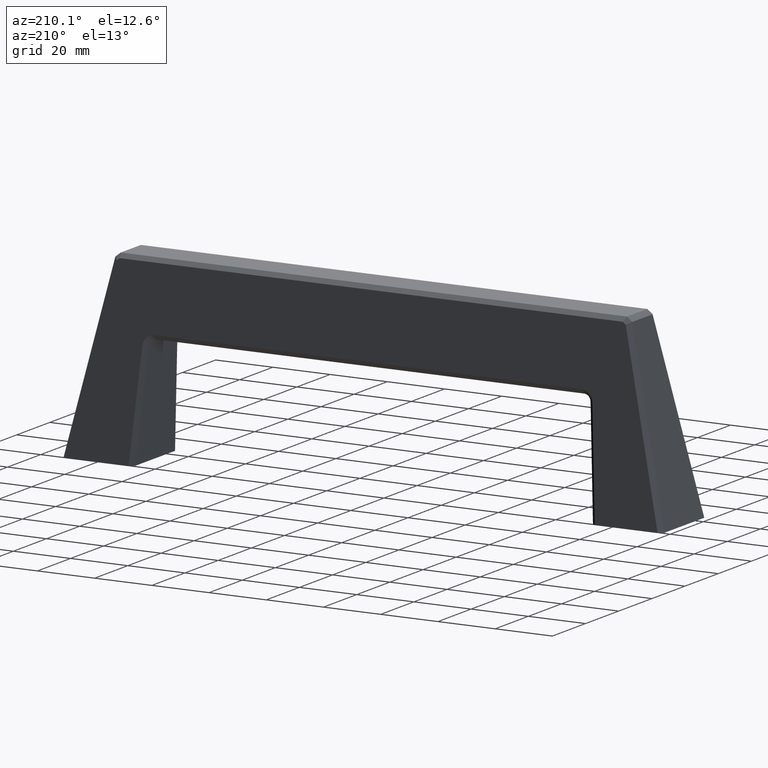
[diagram: clean part render]
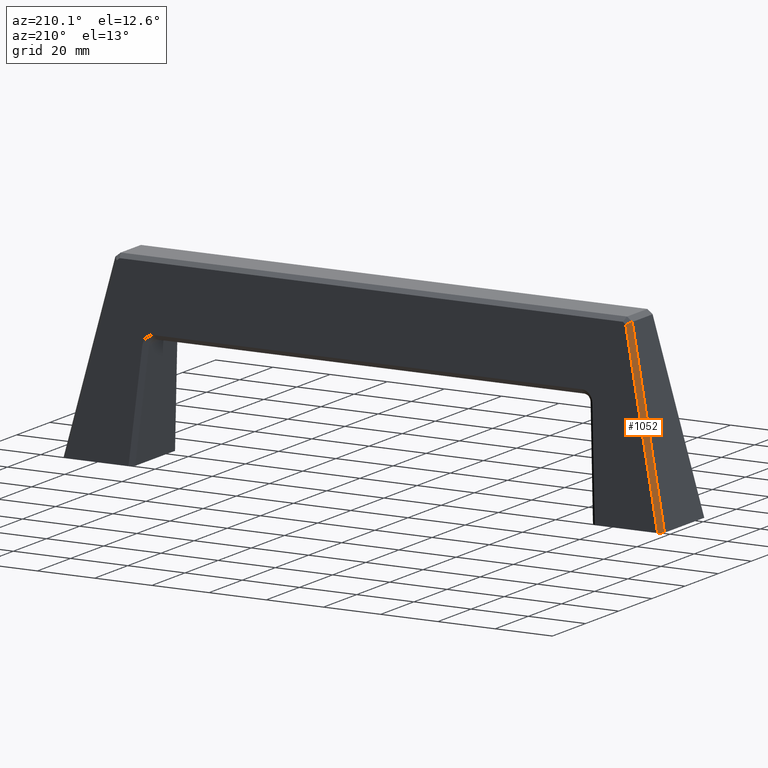
[diagram: same view with one face highlighted and labeled with its STEP entity id]
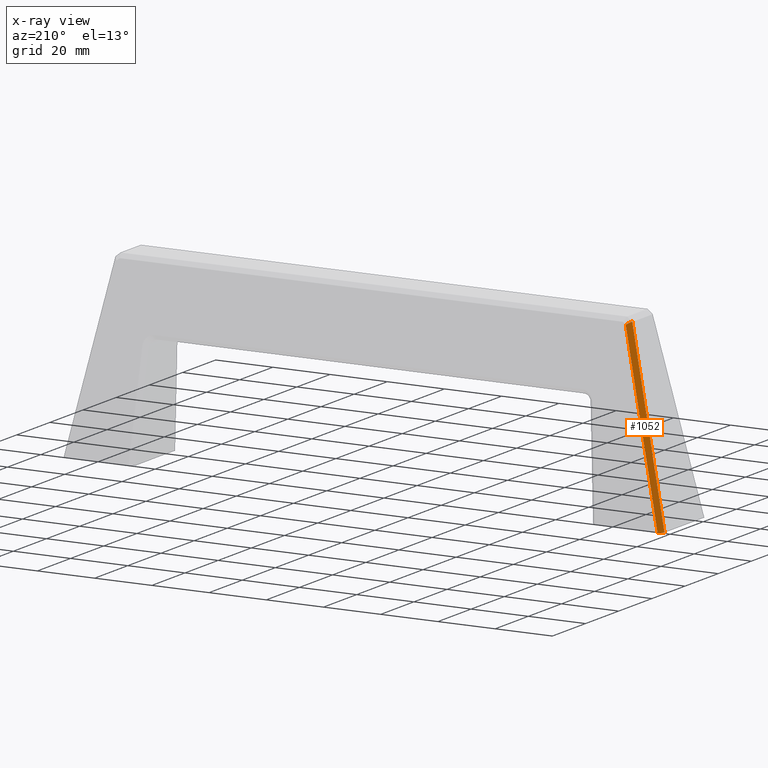
[diagram: x-ray of the same camera — body ghosted, the highlighted face saturated]
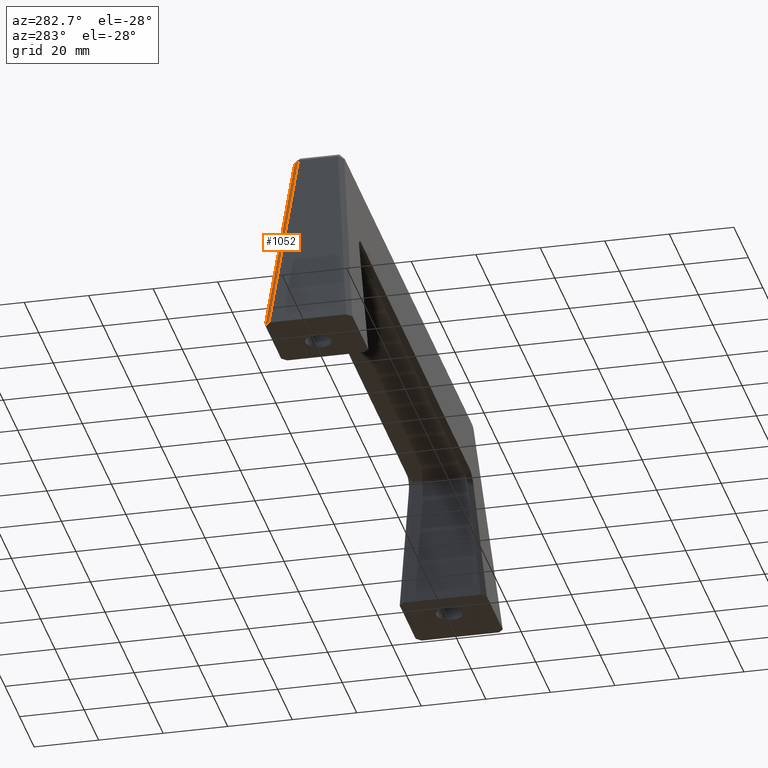
[diagram: same view with one face highlighted and labeled with its STEP entity id]
A machine part, auxiliary view. The second image highlights one B-rep face of the part: STEP entity #1052.
The next image is the same camera in x-ray: the body ghosted, the highlighted face saturated — about 0% of this face is hidden behind the body in this view.
A second angle (auxiliary view) of the same face is appended — the face is thin or edge-on in the first view.
In plain terms, the highlighted face is a freeform B-spline surface patch.
Its self-contained STEP definition (entity closure, byte-faithful):
#1010=CARTESIAN_POINT('',(-99.153384688773897,18.721165536136329,-3.127820570587016));
#1011=CARTESIAN_POINT('',(-105.807079596739400,12.214614540520889,-3.127820570587016));
#1012=CARTESIAN_POINT('',(-88.035175221416225,7.351520732229878,65.746842794051815));
#1013=CARTESIAN_POINT('',(-94.688870129381726,0.844969736614440,65.746842794051815));
#1014=B_SPLINE_SURFACE_WITH_KNOTS('',1,1,((#1010,#1012),(#1011,#1013)),.UNSPECIFIED.,.F.,.F.,.U.,(2,2),(2,2),(0.0,9.306280770900388),(0.0,70.686651203175273),.UNSPECIFIED.);
#1015=CARTESIAN_POINT('',(-105.0,11.993765873947320,0.0));
#1016=VERTEX_POINT('',#1015);
#1017=CARTESIAN_POINT('',(-103.459702791621200,13.500000000000000,0.0));
#1018=VERTEX_POINT('',#1017);
#1019=CARTESIAN_POINT('',(-105.0,11.993765873947320,0.0));
#1020=CARTESIAN_POINT('',(-103.459702791621200,13.500000000000000,0.0));
#1021=QUASI_UNIFORM_CURVE('',1,(#1019,#1020),.UNSPECIFIED.,.F.,.U.);
#1022=EDGE_CURVE('',#1016,#1018,#1021,.T.);
#1023=ORIENTED_EDGE('',*,*,#1022,.F.);
#1024=CARTESIAN_POINT('',(-90.342397886913915,6.131055266507589,62.539582345961698));
#1025=VERTEX_POINT('',#1024);
#1026=CARTESIAN_POINT('',(-90.342397886913915,6.131055266507589,62.539582345961698));
#1027=CARTESIAN_POINT('',(-105.0,11.993765873947320,0.0));
#1028=QUASI_UNIFORM_CURVE('',1,(#1026,#1027),.UNSPECIFIED.,.F.,.U.);
#1029=EDGE_CURVE('',#1025,#1016,#1028,.T.);
#1030=ORIENTED_EDGE('',*,*,#1029,.F.);
#1031=CARTESIAN_POINT('',(-90.242188162535697,6.203395405296470,62.619021103749411));
#1032=VERTEX_POINT('',#1031);
#1033=CARTESIAN_POINT('',(-90.242188162535697,6.203395405296470,62.619021103749411));
#1034=CARTESIAN_POINT('',(-90.342397886913915,6.131055266507589,62.539582345961698));
#1035=QUASI_UNIFORM_CURVE('',1,(#1033,#1034),.UNSPECIFIED.,.F.,.U.);
#1036=EDGE_CURVE('',#1032,#1025,#1035,.T.);
#1037=ORIENTED_EDGE('',*,*,#1036,.F.);
#1038=CARTESIAN_POINT('',(-88.972309433597815,7.705369059758549,61.813352750485102));
#1039=VERTEX_POINT('',#1038);
#1040=CARTESIAN_POINT('',(-90.242188162535697,6.203395405296470,62.619021103749411));
#1041=CARTESIAN_POINT('',(-88.972309433597815,7.705369059758549,61.813352750485102));
#1042=QUASI_UNIFORM_CURVE('',1,(#1040,#1041),.UNSPECIFIED.,.F.,.U.);
#1043=EDGE_CURVE('',#1032,#1039,#1042,.T.);
#1044=ORIENTED_EDGE('',*,*,#1043,.T.);
#1045=CARTESIAN_POINT('',(-103.459702791621200,13.500000000000000,0.0));
#1046=CARTESIAN_POINT('',(-88.972309433597815,7.705369059758549,61.813352750485102));
#1047=QUASI_UNIFORM_CURVE('',1,(#1045,#1046),.UNSPECIFIED.,.F.,.U.);
#1048=EDGE_CURVE('',#1018,#1039,#1047,.T.);
#1049=ORIENTED_EDGE('',*,*,#1048,.F.);
#1050=EDGE_LOOP('',(#1023,#1030,#1037,#1044,#1049));
#1051=FACE_OUTER_BOUND('',#1050,.T.);
#1052=ADVANCED_FACE('',(#1051),#1014,.T.);